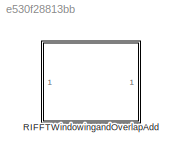
MODEL slx_e530f28813bb
KIND library
CONFIG AbsTol = auto
CONFIG EnableMultiTasking = off
CONFIG FixedStep = auto
CONFIG MaxStep = auto
CONFIG MinStep = auto
CONFIG RelTol = 1e-3
CONFIG SampleTimeConstraint = Unconstrained
CONFIG SolverName = VariableStepAuto
CONFIG StartTime = 0.0
CONFIG StopTime = 10.0
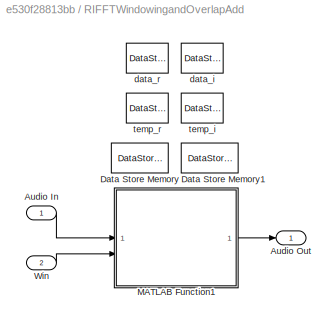
BLOCK [SubSystem] RIFFTWindowingandOverlapAdd
BLOCK [Inport] RIFFTWindowingandOverlapAdd/Audio In
BLOCK [Outport] RIFFTWindowingandOverlapAdd/Audio Out
  VectorParamsAs1DForOutWhenUnconnected = off
BLOCK [DataStoreMemory] RIFFTWindowingandOverlapAdd/Data Store Memory
  DataStoreName = twiddle_r
  OutDataTypeStr = uint32
  ReadBeforeWriteMsg = warning
  ShowAdditionalParam = off
  SignalType = real
  WriteAfterReadMsg = warning
  WriteAfterWriteMsg = warning
BLOCK [DataStoreMemory] RIFFTWindowingandOverlapAdd/Data Store Memory1
  DataStoreName = twiddle_i
  OutDataTypeStr = uint32
  ReadBeforeWriteMsg = warning
  ShowAdditionalParam = off
  SignalType = real
  WriteAfterReadMsg = warning
  WriteAfterWriteMsg = warning
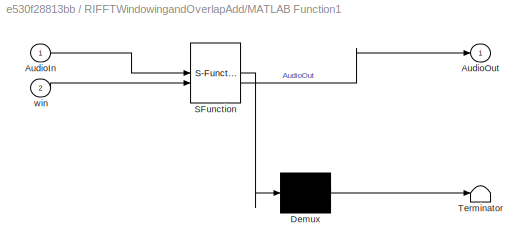
BLOCK [SubSystem] RIFFTWindowingandOverlapAdd/MATLAB Function1
  ErrorFcn = Stateflow.Translate.translate
  PermitHierarchicalResolution = ExplicitOnly
  SFBlockType = MATLAB Function
  TreatAsAtomicUnit = on
BLOCK [Demux] RIFFTWindowingandOverlapAdd/MATLAB Function1/ Demux 
  Outputs = 1
BLOCK [S-Function] RIFFTWindowingandOverlapAdd/MATLAB Function1/ SFunction 
  EnableBusSupport = off
  FunctionName = sf_sfun
  Parameters = fftSize,numOverlap,variantSelect
  PortCounts = [2 2]
  SFcnIsStateOwnerBlock = off
  SFunctionDeploymentMode = off
  Tag = Stateflow S-Function 1
BLOCK [Terminator] RIFFTWindowingandOverlapAdd/MATLAB Function1/ Terminator 
BLOCK [Inport] RIFFTWindowingandOverlapAdd/MATLAB Function1/AudioIn
BLOCK [Outport] RIFFTWindowingandOverlapAdd/MATLAB Function1/AudioOut
  VectorParamsAs1DForOutWhenUnconnected = off
BLOCK [Inport] RIFFTWindowingandOverlapAdd/MATLAB Function1/win
  Port = 2
BLOCK [Inport] RIFFTWindowingandOverlapAdd/Win
  Port = 2
BLOCK [DataStoreMemory] RIFFTWindowingandOverlapAdd/data_i
  DataStoreName = data_i
  EmbeddedSignalClassName = Blocklib.Signal
  InitialValue = zeros(fftSize,1)
  OutDataTypeStr = single
  ReadBeforeWriteMsg = warning
  ShowAdditionalParam = off
  SignalType = real
  WriteAfterReadMsg = warning
  WriteAfterWriteMsg = warning
BLOCK [DataStoreMemory] RIFFTWindowingandOverlapAdd/data_r
  DataStoreName = data_r
  EmbeddedSignalClassName = Blocklib.Signal
  InitialValue = zeros(fftSize,1)
  OutDataTypeStr = single
  ReadBeforeWriteMsg = warning
  ShowAdditionalParam = off
  SignalType = real
  WriteAfterReadMsg = warning
  WriteAfterWriteMsg = warning
BLOCK [DataStoreMemory] RIFFTWindowingandOverlapAdd/temp_i
  DataStoreName = temp_i
  EmbeddedSignalClassName = Blocklib.Signal
  InitialValue = zeros(fftSize,1)
  OutDataTypeStr = single
  ReadBeforeWriteMsg = warning
  ShowAdditionalParam = off
  SignalType = real
  WriteAfterReadMsg = warning
  WriteAfterWriteMsg = warning
BLOCK [DataStoreMemory] RIFFTWindowingandOverlapAdd/temp_r
  DataStoreName = temp_r
  EmbeddedSignalClassName = Blocklib.Signal
  InitialValue = zeros(fftSize,1)
  OutDataTypeStr = single
  ReadBeforeWriteMsg = warning
  ShowAdditionalParam = off
  SignalType = real
  WriteAfterReadMsg = warning
  WriteAfterWriteMsg = warning
CHART RIFFTWindowingandOverlapAdd/MATLAB Function1 states=1 transitions=1
  STATE_LABEL 'eML_blk_kernel()'
  STATE_LABEL 'SCRIPT:\nfunction AudioOut = ifftReal(AudioIn, fftSize, numOverlap, win, variantSelect)   \n\nglobal data_r\nglobal data_i\nglobal temp_r\nglobal temp_i\nglobal twiddle_r\nglobal twiddle_i\n\n[~, numChannels] = size(AudioIn);\noutputSize = fftSize - numOverlap;\n\n% Buffer to hold overlapped samples\npersistent outputOverlap;\nif isempty(outputOverlap)\n    outputOverlap = single(zeros(numOverlap, numChannels));\n...<+2891ch>'
CHART  states=0 transitions=0
